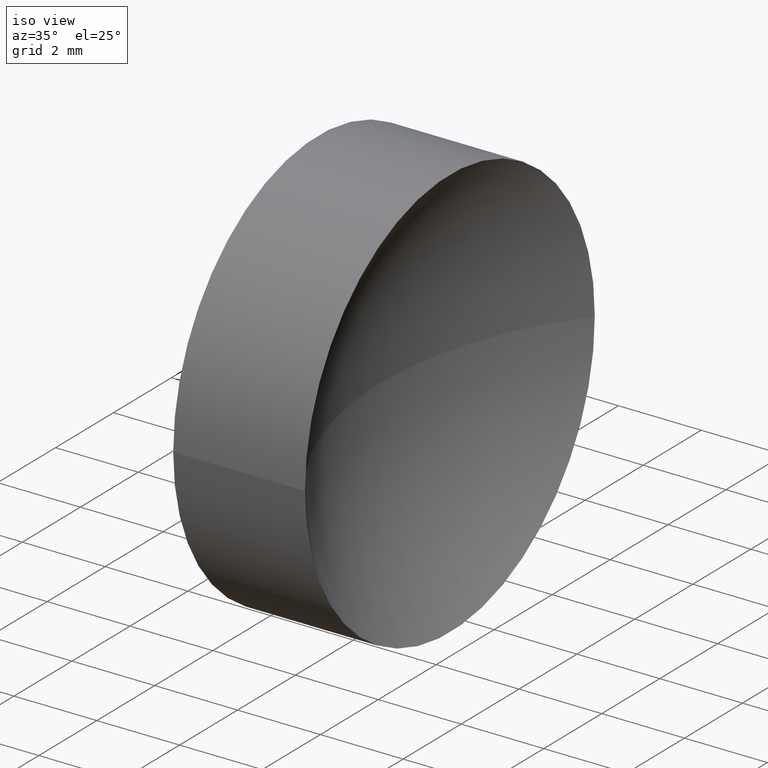
[diagram: clean part render]
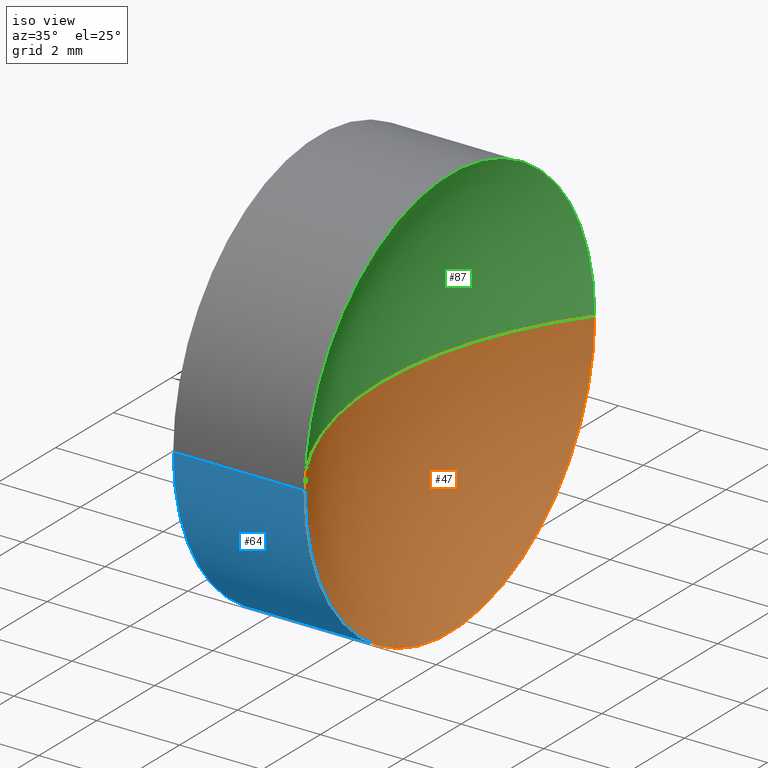
[diagram: same view with three faces highlighted in distinct colors, each labeled with its STEP entity id]
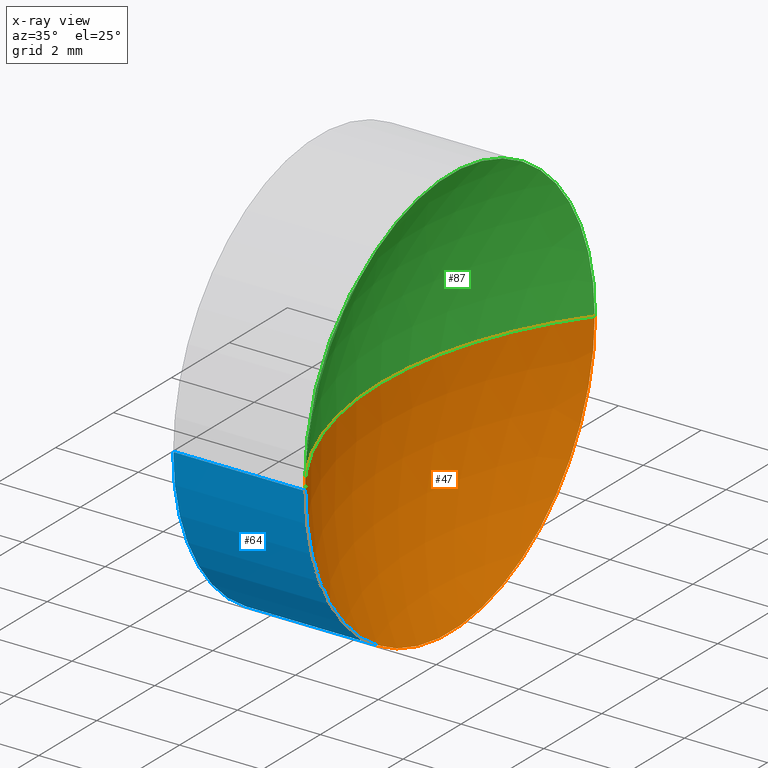
[diagram: x-ray of the same camera — body ghosted, the three highlighted faces saturated]
A machine part, iso view with three faces highlighted in distinct colors.
The next image is the same camera in x-ray (body ghosted, the three faces saturated) — at least one of them is partly hidden behind the body in this view.
Their STEP definitions:

[orange] entity #47 — the highlighted spherical surface has radius 8.26 mm.
#10 = DIRECTION ( 'NONE',  ( 0.0000000000000000000, -1.000000000000000000, 0.0000000000000000000 ) ) ;
#20 = DIRECTION ( 'NONE',  ( 3.868869157118576300E-032, 1.224646799147353200E-016, -1.000000000000000000 ) ) ;
#26 = VERTEX_POINT ( 'NONE', #133 ) ;
#27 = DIRECTION ( 'NONE',  ( 0.0000000000000000000, 0.0000000000000000000, 1.000000000000000000 ) ) ;
#34 = SPHERICAL_SURFACE ( 'NONE', #68, 8.259999999999996200 ) ;
#40 = DIRECTION ( 'NONE',  ( 0.0000000000000000000, 1.000000000000000000, 0.0000000000000000000 ) ) ;
#41 = CARTESIAN_POINT ( 'NONE',  ( 25.60946209566776900, 18.03112609140304600, 0.0000000000000000000 ) ) ;
#47 = ADVANCED_FACE ( 'NONE', ( #159 ), #34, .F. ) ;
#52 = DIRECTION ( 'NONE',  ( 0.0000000000000000000, 0.0000000000000000000, -1.000000000000000000 ) ) ;
#53 = CARTESIAN_POINT ( 'NONE',  ( 32.18423205362065400, 13.03112609140303500, 0.0000000000000000000 ) ) ;
#57 = EDGE_CURVE ( 'NONE', #69, #26, #123, .T. ) ;
#58 = ORIENTED_EDGE ( 'NONE', *, *, #139, .F. ) ;
#68 = AXIS2_PLACEMENT_3D ( 'NONE', #53, #52, #40 ) ;
#69 = VERTEX_POINT ( 'NONE', #41 ) ;
#71 = AXIS2_PLACEMENT_3D ( 'NONE', #77, #27, #134 ) ;
#75 = CIRCLE ( 'NONE', #128, 5.000000000000002700 ) ;
#77 = CARTESIAN_POINT ( 'NONE',  ( 32.18423205362065400, 13.03112609140303500, 0.0000000000000000000 ) ) ;
#85 = EDGE_LOOP ( 'NONE', ( #58, #135, #98 ) ) ;
#98 = ORIENTED_EDGE ( 'NONE', *, *, #57, .T. ) ;
#102 = DIRECTION ( 'NONE',  ( -1.000000000000000000, 3.159171411554934600E-016, -0.0000000000000000000 ) ) ;
#106 = AXIS2_PLACEMENT_3D ( 'NONE', #162, #20, #109 ) ;
#109 = DIRECTION ( 'NONE',  ( 0.0000000000000000000, 1.000000000000000000, 1.224646799147353200E-016 ) ) ;
#123 = CIRCLE ( 'NONE', #71, 8.259999999999996200 ) ;
#128 = AXIS2_PLACEMENT_3D ( 'NONE', #164, #102, #10 ) ;
#130 = CIRCLE ( 'NONE', #106, 8.259999999999996200 ) ;
#133 = CARTESIAN_POINT ( 'NONE',  ( 23.92423205362066000, 13.03112609140303800, 0.0000000000000000000 ) ) ;
#134 = DIRECTION ( 'NONE',  ( 1.000000000000000000, 0.0000000000000000000, 0.0000000000000000000 ) ) ;
#135 = ORIENTED_EDGE ( 'NONE', *, *, #137, .F. ) ;
#137 = EDGE_CURVE ( 'NONE', #69, #165, #75, .T. ) ;
#139 = EDGE_CURVE ( 'NONE', #165, #26, #130, .T. ) ;
#159 = FACE_OUTER_BOUND ( 'NONE', #85, .T. ) ;
#162 = CARTESIAN_POINT ( 'NONE',  ( 32.18423205362065400, 13.03112609140303500, 0.0000000000000000000 ) ) ;
#163 = CARTESIAN_POINT ( 'NONE',  ( 25.60946209566776600, 8.031126091403031400, -6.123233995736772200E-016 ) ) ;
#164 = CARTESIAN_POINT ( 'NONE',  ( 25.60946209566776600, 13.03112609140304000, 0.0000000000000000000 ) ) ;
#165 = VERTEX_POINT ( 'NONE', #163 ) ;

[blue] entity #64 — the highlighted cylindrical surface (partial cylindrical patch) has radius 5 mm, axis along (-1, 0, -0).
#1 = CARTESIAN_POINT ( 'NONE',  ( 21.50597511808246100, 13.03112609140304200, 0.0000000000000000000 ) ) ;
#10 = DIRECTION ( 'NONE',  ( 0.0000000000000000000, -1.000000000000000000, 0.0000000000000000000 ) ) ;
#12 = CARTESIAN_POINT ( 'NONE',  ( 21.50597511808246100, 18.03112609140304200, 6.123233995736768300E-016 ) ) ;
#14 = LINE ( 'NONE', #12, #152 ) ;
#16 = VERTEX_POINT ( 'NONE', #92 ) ;
#22 = FACE_OUTER_BOUND ( 'NONE', #56, .T. ) ;
#32 = CIRCLE ( 'NONE', #117, 5.000000000000000900 ) ;
#39 = CARTESIAN_POINT ( 'NONE',  ( 21.50597511808246100, 8.031126091403040200, 0.0000000000000000000 ) ) ;
#41 = CARTESIAN_POINT ( 'NONE',  ( 25.60946209566776900, 18.03112609140304600, 0.0000000000000000000 ) ) ;
#50 = DIRECTION ( 'NONE',  ( -1.000000000000000000, 3.159171411554934600E-016, -0.0000000000000000000 ) ) ;
#54 = CARTESIAN_POINT ( 'NONE',  ( 22.42423205362066000, 8.031126091403040200, 0.0000000000000000000 ) ) ;
#56 = EDGE_LOOP ( 'NONE', ( #96, #80, #161, #119 ) ) ;
#64 = ADVANCED_FACE ( 'NONE', ( #22 ), #114, .T. ) ;
#69 = VERTEX_POINT ( 'NONE', #41 ) ;
#75 = CIRCLE ( 'NONE', #128, 5.000000000000002700 ) ;
#76 = DIRECTION ( 'NONE',  ( -1.000000000000000000, 3.159171411554934600E-016, -0.0000000000000000000 ) ) ;
#78 = DIRECTION ( 'NONE',  ( 0.0000000000000000000, -1.000000000000000000, 0.0000000000000000000 ) ) ;
#80 = ORIENTED_EDGE ( 'NONE', *, *, #137, .T. ) ;
#84 = DIRECTION ( 'NONE',  ( -1.000000000000000000, 3.159171411554934600E-016, -0.0000000000000000000 ) ) ;
#88 = AXIS2_PLACEMENT_3D ( 'NONE', #1, #50, #78 ) ;
#89 = VECTOR ( 'NONE', #84, 1000.000000000000000 ) ;
#92 = CARTESIAN_POINT ( 'NONE',  ( 22.42423205362066000, 18.03112609140304200, 6.123233995736768300E-016 ) ) ;
#96 = ORIENTED_EDGE ( 'NONE', *, *, #131, .F. ) ;
#102 = DIRECTION ( 'NONE',  ( -1.000000000000000000, 3.159171411554934600E-016, -0.0000000000000000000 ) ) ;
#103 = EDGE_CURVE ( 'NONE', #16, #129, #32, .T. ) ;
#104 = DIRECTION ( 'NONE',  ( 0.0000000000000000000, -1.000000000000000000, 0.0000000000000000000 ) ) ;
#107 = LINE ( 'NONE', #39, #89 ) ;
#114 = CYLINDRICAL_SURFACE ( 'NONE', #88, 5.000000000000000900 ) ;
#115 = DIRECTION ( 'NONE',  ( -1.000000000000000000, 3.159171411554934600E-016, -0.0000000000000000000 ) ) ;
#117 = AXIS2_PLACEMENT_3D ( 'NONE', #166, #115, #104 ) ;
#119 = ORIENTED_EDGE ( 'NONE', *, *, #103, .F. ) ;
#128 = AXIS2_PLACEMENT_3D ( 'NONE', #164, #102, #10 ) ;
#129 = VERTEX_POINT ( 'NONE', #54 ) ;
#131 = EDGE_CURVE ( 'NONE', #69, #16, #14, .T. ) ;
#137 = EDGE_CURVE ( 'NONE', #69, #165, #75, .T. ) ;
#152 = VECTOR ( 'NONE', #76, 1000.000000000000000 ) ;
#153 = EDGE_CURVE ( 'NONE', #165, #129, #107, .T. ) ;
#161 = ORIENTED_EDGE ( 'NONE', *, *, #153, .T. ) ;
#163 = CARTESIAN_POINT ( 'NONE',  ( 25.60946209566776600, 8.031126091403031400, -6.123233995736772200E-016 ) ) ;
#164 = CARTESIAN_POINT ( 'NONE',  ( 25.60946209566776600, 13.03112609140304000, 0.0000000000000000000 ) ) ;
#165 = VERTEX_POINT ( 'NONE', #163 ) ;
#166 = CARTESIAN_POINT ( 'NONE',  ( 22.42423205362066000, 13.03112609140304200, 0.0000000000000000000 ) ) ;

[green] entity #87 — the highlighted spherical surface has radius 8.26 mm.
#8 = EDGE_LOOP ( 'NONE', ( #31, #13, #59 ) ) ;
#13 = ORIENTED_EDGE ( 'NONE', *, *, #139, .T. ) ;
#20 = DIRECTION ( 'NONE',  ( 3.868869157118576300E-032, 1.224646799147353200E-016, -1.000000000000000000 ) ) ;
#26 = VERTEX_POINT ( 'NONE', #133 ) ;
#27 = DIRECTION ( 'NONE',  ( 0.0000000000000000000, 0.0000000000000000000, 1.000000000000000000 ) ) ;
#29 = DIRECTION ( 'NONE',  ( 0.0000000000000000000, 1.000000000000000000, 0.0000000000000000000 ) ) ;
#31 = ORIENTED_EDGE ( 'NONE', *, *, #120, .F. ) ;
#41 = CARTESIAN_POINT ( 'NONE',  ( 25.60946209566776900, 18.03112609140304600, 0.0000000000000000000 ) ) ;
#48 = AXIS2_PLACEMENT_3D ( 'NONE', #158, #70, #81 ) ;
#57 = EDGE_CURVE ( 'NONE', #69, #26, #123, .T. ) ;
#59 = ORIENTED_EDGE ( 'NONE', *, *, #57, .F. ) ;
#69 = VERTEX_POINT ( 'NONE', #41 ) ;
#70 = DIRECTION ( 'NONE',  ( -1.000000000000000000, 3.159171411554934600E-016, -0.0000000000000000000 ) ) ;
#71 = AXIS2_PLACEMENT_3D ( 'NONE', #77, #27, #134 ) ;
#73 = SPHERICAL_SURFACE ( 'NONE', #136, 8.259999999999996200 ) ;
#77 = CARTESIAN_POINT ( 'NONE',  ( 32.18423205362065400, 13.03112609140303500, 0.0000000000000000000 ) ) ;
#81 = DIRECTION ( 'NONE',  ( 0.0000000000000000000, -1.000000000000000000, 0.0000000000000000000 ) ) ;
#87 = ADVANCED_FACE ( 'NONE', ( #148 ), #73, .F. ) ;
#91 = DIRECTION ( 'NONE',  ( 0.0000000000000000000, 0.0000000000000000000, -1.000000000000000000 ) ) ;
#106 = AXIS2_PLACEMENT_3D ( 'NONE', #162, #20, #109 ) ;
#109 = DIRECTION ( 'NONE',  ( 0.0000000000000000000, 1.000000000000000000, 1.224646799147353200E-016 ) ) ;
#120 = EDGE_CURVE ( 'NONE', #165, #69, #154, .T. ) ;
#123 = CIRCLE ( 'NONE', #71, 8.259999999999996200 ) ;
#130 = CIRCLE ( 'NONE', #106, 8.259999999999996200 ) ;
#133 = CARTESIAN_POINT ( 'NONE',  ( 23.92423205362066000, 13.03112609140303800, 0.0000000000000000000 ) ) ;
#134 = DIRECTION ( 'NONE',  ( 1.000000000000000000, 0.0000000000000000000, 0.0000000000000000000 ) ) ;
#136 = AXIS2_PLACEMENT_3D ( 'NONE', #142, #91, #29 ) ;
#139 = EDGE_CURVE ( 'NONE', #165, #26, #130, .T. ) ;
#142 = CARTESIAN_POINT ( 'NONE',  ( 32.18423205362065400, 13.03112609140303500, 0.0000000000000000000 ) ) ;
#148 = FACE_OUTER_BOUND ( 'NONE', #8, .T. ) ;
#154 = CIRCLE ( 'NONE', #48, 5.000000000000002700 ) ;
#158 = CARTESIAN_POINT ( 'NONE',  ( 25.60946209566776600, 13.03112609140304000, 0.0000000000000000000 ) ) ;
#162 = CARTESIAN_POINT ( 'NONE',  ( 32.18423205362065400, 13.03112609140303500, 0.0000000000000000000 ) ) ;
#163 = CARTESIAN_POINT ( 'NONE',  ( 25.60946209566776600, 8.031126091403031400, -6.123233995736772200E-016 ) ) ;
#165 = VERTEX_POINT ( 'NONE', #163 ) ;